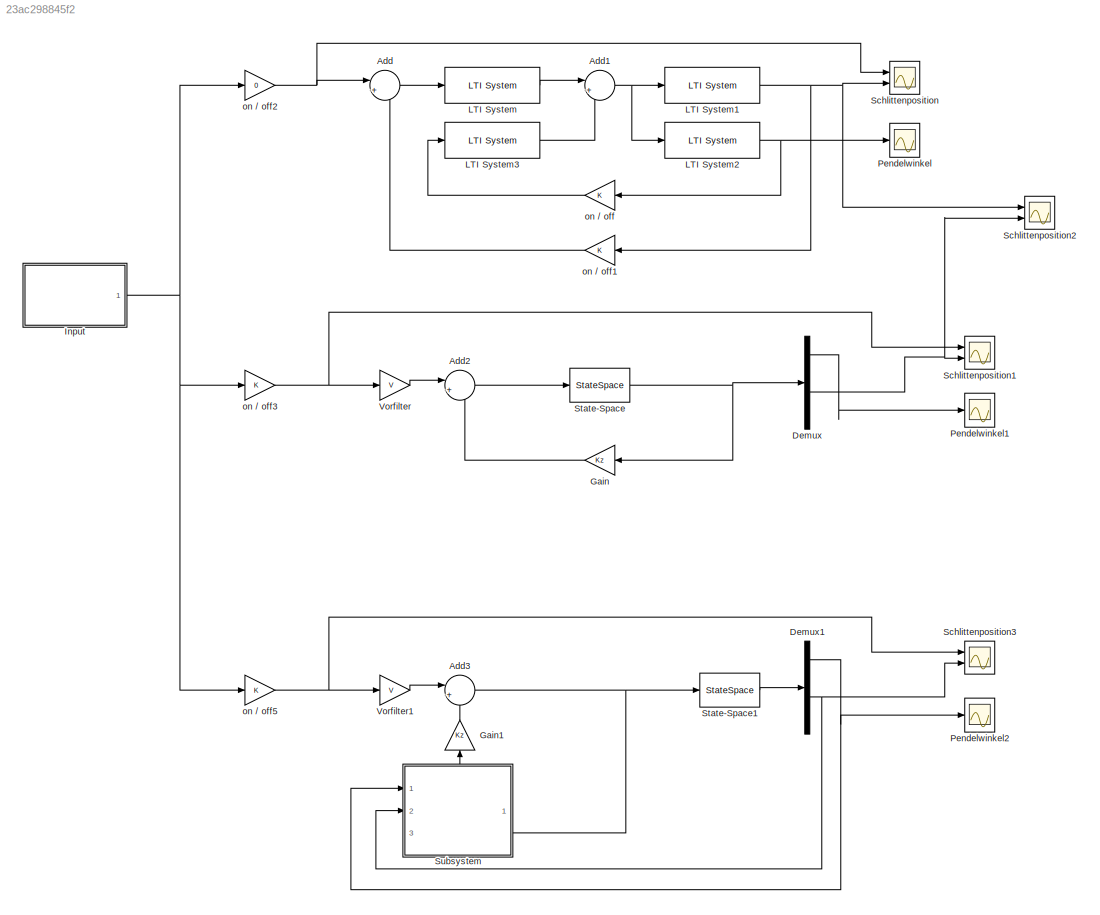
MODEL slx_23ac298845f2
KIND model
CONFIG AbsTol = auto
CONFIG EnableMultiTasking = off
CONFIG FixedStep = auto
CONFIG MaxStep = auto
CONFIG MinStep = auto
CONFIG RelTol = 1e-3
CONFIG SampleTimeConstraint = Unconstrained
CONFIG Solver = ode23
CONFIG SolverName = ode23
CONFIG StartTime = 0.0
CONFIG StopTime = 70
BLOCK [Sum] Add
  Inputs = |+-
  Ports = [2, 1]
BLOCK [Sum] Add1
  Inputs = |+-
  Ports = [2, 1]
BLOCK [Sum] Add2
  Inputs = |+-
  Ports = [2, 1]
BLOCK [Sum] Add3
  Inputs = |+-
  Ports = [2, 1]
BLOCK [Demux] Demux
  Ports = [1, 4]
BLOCK [Demux] Demux1
  Ports = [1, 4]
BLOCK [Gain] Gain
  Gain = Kz
  Multiplication = Matrix(K*u)
  NameLocation = top
BLOCK [Gain] Gain1
  Gain = Kz
  Multiplication = Matrix(K*u)
  NameLocation = right
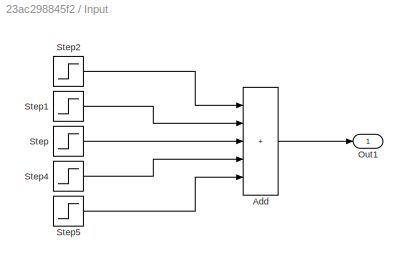
BLOCK [SubSystem] Input
  Ports = [0, 1]
  RequestExecContextInheritance = off
BLOCK [Sum] Input/Add
  IconShape = rectangular
  Inputs = +++++
  Ports = [5, 1]
BLOCK [Outport] Input/Out1
BLOCK [Step] Input/Step
  After = 1.5
  SampleTime = 0
  Time = 30
BLOCK [Step] Input/Step1
  After = -.5
  SampleTime = 0
  Time = 15
BLOCK [Step] Input/Step2
  After = .2
  SampleTime = 0
BLOCK [Step] Input/Step4
  After = -.5
  SampleTime = 0
  Time = 45
BLOCK [Step] Input/Step5
  After = -.2
  SampleTime = 0
  Time = 60
BLOCK [Reference] LTI System  REF=cstblocks/LTI System
  Ports = [1, 1]
  SourceBlock = cstblocks/LTI System
  SourceProductBaseCode = CT
  SourceType = LTI Block
BLOCK [Reference] LTI System1  REF=cstblocks/LTI System
  Ports = [1, 1]
  SourceBlock = cstblocks/LTI System
  SourceProductBaseCode = CT
  SourceType = LTI Block
BLOCK [Reference] LTI System2  REF=cstblocks/LTI System
  Ports = [1, 1]
  SourceBlock = cstblocks/LTI System
  SourceProductBaseCode = CT
  SourceType = LTI Block
BLOCK [Reference] LTI System3  REF=cstblocks/LTI System
  Ports = [1, 1]
  SourceBlock = cstblocks/LTI System
  SourceProductBaseCode = CT
  SourceType = LTI Block
BLOCK [Scope] Pendelwinkel
  Floating = off
  NumInputPorts = 1
  Ports = [1]
  ScopeSpecificationString = Simulink.scopes.TimeScopeBlockCfg('CurrentConfiguration', extmgr.ConfigurationSet(extmgr.Configuration('Core','General UI',true),extmgr.Configuration('Core','Source UI',true),extmgr.Configuration('Sources','WiredSimulink',true,'DataLoggingVariableName','ScopeData1'),extmgr.Configuration('Visuals','Time Domain',true,'SerializedDisplays',{struct('MinYLimReal','-1.31509','MaxYLimReal','0.56374','YLab...<+1466ch>
BLOCK [Scope] Pendelwinkel1
  Floating = off
  NumInputPorts = 1
  Ports = [1]
  ScopeSpecificationString = Simulink.scopes.TimeScopeBlockCfg('CurrentConfiguration', extmgr.ConfigurationSet(extmgr.Configuration('Core','General UI',true),extmgr.Configuration('Core','Source UI',true),extmgr.Configuration('Sources','WiredSimulink',true,'DataLoggingVariableName','ScopeData3'),extmgr.Configuration('Visuals','Time Domain',true,'SerializedDisplays',{struct('MinYLimReal','-2.29629','MaxYLimReal','0.98455','YLab...<+1464ch>
BLOCK [Scope] Pendelwinkel2
  Floating = off
  NumInputPorts = 1
  Ports = [1]
  ScopeSpecificationString = Simulink.scopes.TimeScopeBlockCfg('CurrentConfiguration', extmgr.ConfigurationSet(extmgr.Configuration('Core','General UI',true),extmgr.Configuration('Core','Source UI',true),extmgr.Configuration('Sources','WiredSimulink',true,'DataLoggingVariableName','ScopeData5'),extmgr.Configuration('Visuals','Time Domain',true,'SerializedDisplays',{struct('MinYLimReal','-9.66326','MaxYLimReal','4.38983','YLab...<+1463ch>
BLOCK [Scope] Schlittenposition
  Floating = off
  NumInputPorts = 2
  Ports = [2]
  ScopeSpecificationString = Simulink.scopes.TimeScopeBlockCfg('CurrentConfiguration', extmgr.ConfigurationSet(extmgr.Configuration('Core','General UI',true),extmgr.Configuration('Core','Source UI',true),extmgr.Configuration('Sources','WiredSimulink',true),extmgr.Configuration('Visuals','Time Domain',true,'SerializedDisplays',{struct('MinYLimReal','-0.491','MaxYLimReal','1.39909','YLabelReal','','MinYLimMag','0.00000','MaxYLi...<+1410ch>
BLOCK [Scope] Schlittenposition1
  Floating = off
  NumInputPorts = 2
  Ports = [2]
  ScopeSpecificationString = Simulink.scopes.TimeScopeBlockCfg('CurrentConfiguration', extmgr.ConfigurationSet(extmgr.Configuration('Core','General UI',true),extmgr.Configuration('Core','Source UI',true),extmgr.Configuration('Sources','WiredSimulink',true,'DataLoggingVariableName','ScopeData2'),extmgr.Configuration('Visuals','Time Domain',true,'SerializedDisplays',{struct('MinYLimReal','-1.50008','MaxYLimReal','1.50001','YLab...<+1501ch>
BLOCK [Scope] Schlittenposition2
  Floating = off
  NumInputPorts = 2
  Ports = [2]
  ScopeSpecificationString = Simulink.scopes.TimeScopeBlockCfg('CurrentConfiguration', extmgr.ConfigurationSet(extmgr.Configuration('Core','General UI',true),extmgr.Configuration('Core','Source UI',true),extmgr.Configuration('Sources','WiredSimulink',true,'DataLoggingVariableName','ScopeData4'),extmgr.Configuration('Visuals','Time Domain',true,'SerializedDisplays',{struct('MinYLimReal','-1.50008','MaxYLimReal','1.50001','YLab...<+1480ch>
BLOCK [Scope] Schlittenposition3
  Floating = off
  NumInputPorts = 2
  Ports = [2]
  ScopeSpecificationString = Simulink.scopes.TimeScopeBlockCfg('CurrentConfiguration', extmgr.ConfigurationSet(extmgr.Configuration('Core','General UI',true),extmgr.Configuration('Core','Source UI',true),extmgr.Configuration('Sources','WiredSimulink',true,'DataLoggingVariableName','ScopeData6'),extmgr.Configuration('Visuals','Time Domain',true,'SerializedDisplays',{struct('MinYLimReal','-0.4875','MaxYLimReal','1.3875','YLabel...<+1473ch>
BLOCK [StateSpace] State-Space
  A = A
  B = B
  C = C
  D = D
  InitialCondition = 0
  Ports = [1, 1]
BLOCK [StateSpace] State-Space1
  A = A
  B = B
  C = C
  D = D
  InitialCondition = 0
  Ports = [1, 1]
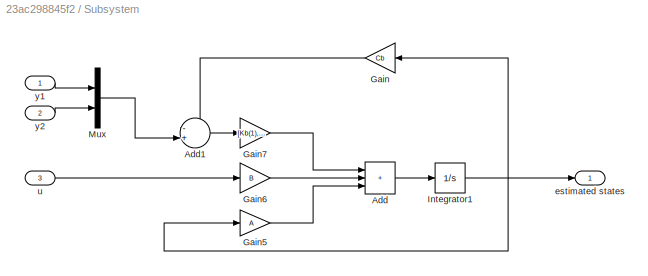
BLOCK [SubSystem] Subsystem
  PortSchema = {"entries":[{"content":{"sides":[{"content":{"connectorIds":["In1","In2"]},"type":"ConnectorPlacement.EquallySpacedRectSide","uuid":"7f2aa8f2-b163-428c-bf81-e9affbf27111"},{"content":{"connectorIds":["In3"],"side":"RIGHT"},"type":"ConnectorPlacement.EquallySpacedRectSide","uuid":"c3f9c232-c3a9-4eee-b4f1-b2439aafc6d8"},{"content":{"connectorIds":["Out1"],"side":"TOP"},"type":"ConnectorPlacement.Equ...<+253ch>
  Ports = [3, 1]
  RequestExecContextInheritance = off
BLOCK [Sum] Subsystem/Add
  IconShape = rectangular
  Inputs = +++
  Ports = [3, 1]
BLOCK [Sum] Subsystem/Add1
  Inputs = -+|
  Ports = [2, 1]
BLOCK [Gain] Subsystem/Gain
  Gain = Cb
  Multiplication = Matrix(K*u)
  NameLocation = top
BLOCK [Gain] Subsystem/Gain5
  Gain = A
  Multiplication = Matrix(K*u)
BLOCK [Gain] Subsystem/Gain6
  Gain = B
BLOCK [Gain] Subsystem/Gain7
  Gain = [Kb(1),Kb(3)]
  Multiplication = Matrix(K*u)
BLOCK [Integrator] Subsystem/Integrator1
  Ports = [1, 1]
BLOCK [Mux] Subsystem/Mux
  DisplayOption = bar
  Inputs = 2
  Ports = [2, 1]
BLOCK [Outport] Subsystem/estimated states
BLOCK [Inport] Subsystem/u
  Port = 3
BLOCK [Inport] Subsystem/y1
BLOCK [Inport] Subsystem/y2
  Port = 2
BLOCK [Gain] Vorfilter
  Gain = V
BLOCK [Gain] Vorfilter1
  Gain = V
BLOCK [Gain] on // off
BLOCK [Gain] on // off1
BLOCK [Gain] on // off2
  Gain = 0
BLOCK [Gain] on // off3
BLOCK [Gain] on // off5
NET Add1:1 -> LTI System1:1, LTI System2:1
LINE Add2:1 -> State-Space:1
NET Add3:1 -> State-Space1:1, Subsystem:3
LINE Add:1 -> LTI System:1
NET Demux1:1 -> Pendelwinkel2:1, Subsystem:1
NET Demux1:3 -> Schlittenposition3:2, Subsystem:2
LINE Demux:1 -> Pendelwinkel1:1
NET Demux:3 -> Schlittenposition1:2, Schlittenposition2:2
LINE Gain1:1 -> Add3:2
LINE Gain:1 -> Add2:2
LINE Input/Add:1 -> Input/Out1:1
LINE Input/Step1:1 -> Input/Add:2
LINE Input/Step2:1 -> Input/Add:1
LINE Input/Step4:1 -> Input/Add:4
LINE Input/Step5:1 -> Input/Add:5
LINE Input/Step:1 -> Input/Add:3
NET Input:1 -> on // off2:1, on // off3:1, on // off5:1
NET LTI System1:1 -> Schlittenposition2:1, Schlittenposition:2, on // off1:1
NET LTI System2:1 -> Pendelwinkel:1, on // off:1
LINE LTI System3:1 -> Add1:2
LINE LTI System:1 -> Add1:1
LINE State-Space1:1 -> Demux1:1
NET State-Space:1 -> Demux:1, Gain:1
LINE Subsystem/Add1:1 -> Subsystem/Gain7:1
LINE Subsystem/Add:1 -> Subsystem/Integrator1:1
LINE Subsystem/Gain5:1 -> Subsystem/Add:3
LINE Subsystem/Gain6:1 -> Subsystem/Add:2
LINE Subsystem/Gain7:1 -> Subsystem/Add:1
LINE Subsystem/Gain:1 -> Subsystem/Add1:1
NET Subsystem/Integrator1:1 -> Subsystem/Gain5:1, Subsystem/Gain:1, Subsystem/estimated states:1
LINE Subsystem/Mux:1 -> Subsystem/Add1:2
LINE Subsystem/u:1 -> Subsystem/Gain6:1
LINE Subsystem/y1:1 -> Subsystem/Mux:1
LINE Subsystem/y2:1 -> Subsystem/Mux:2
LINE Subsystem:1 -> Gain1:1
LINE Vorfilter1:1 -> Add3:1
LINE Vorfilter:1 -> Add2:1
LINE on // off1:1 -> Add:2
NET on // off2:1 -> Add:1, Schlittenposition:1
NET on // off3:1 -> Schlittenposition1:1, Vorfilter:1
NET on // off5:1 -> Schlittenposition3:1, Vorfilter1:1
LINE on // off:1 -> LTI System3:1
note: NET lines group one-source signal fan-out (src -> all destinations, sorted); 1:1 wires keep LINE
